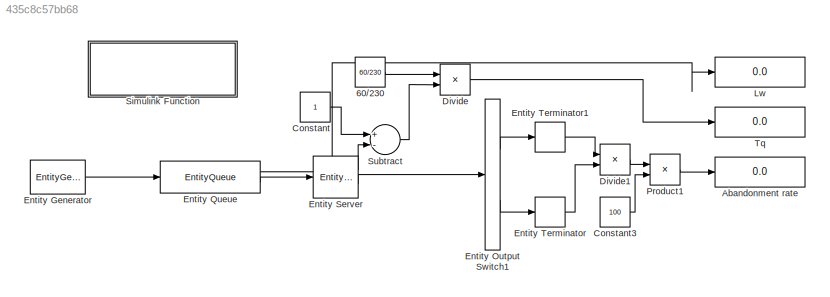
MODEL slx_435c8c57bb68
KIND model
CONFIG AbsTol = auto
CONFIG EnableMultiTasking = off
CONFIG FixedStep = auto
CONFIG MaxStep = auto
CONFIG MinStep = auto
CONFIG RelTol = 1e-3
CONFIG SampleTimeConstraint = Unconstrained
CONFIG Solver = VariableStepAuto
CONFIG SolverName = VariableStepAuto
CONFIG StartTime = 0.0
CONFIG StopTime = 1e5
BLOCK [Constant] 60//230
  Value = 60/230
BLOCK [Display] Abandonment rate
  Decimation = 1
  Ports = [1]
BLOCK [Constant] Constant
BLOCK [Constant] Constant3
  Value = 100
BLOCK [Product] Divide
  InputSameDT = off
  Inputs = */
  OutDataTypeStr = Inherit: Inherit via internal rule
  Ports = [2, 1]
  RndMeth = Floor
  SaturateOnIntegerOverflow = off
BLOCK [Product] Divide1
  InputSameDT = off
  Inputs = */
  OutDataTypeStr = Inherit: Inherit via internal rule
  Ports = [2, 1]
  RndMeth = Floor
  SaturateOnIntegerOverflow = off
BLOCK [EntityGenerator] Entity Generator
  AttributeInitialValue = 1|1|0|2
  AttributeName = ClassA|Impatient|StartTime|Exit
  EntityType = Structured
  EntityTypeName = Entity
  GenerateAction = persistent rngInit;\nif isempty(rngInit)\n    seed = 15318;\n    rng(seed);\n    rngInit = true;\nend\n\n% Pattern: Arbitrary discrete distribution\n% V: Value vector\n% P: Probability vector\nV = [1 2];\nP = [0.2 0.8];\nentity.ClassA = randsample(V, 1, true, P);\n\n% Pattern: Arbitrary discrete distribution\n% V: Value vector\n% P: Probability vector\nV = [1 2];\nP = [0.1 0.9];\nentity.Impatient = randsample(V, 1, ...<+47ch>
  IntergenerationTimeAction = dt = rand(1,1);\npersistent rngInit;\nif isempty(rngInit)\n    seed = 12345;\n    rng(seed);\n    rngInit = true;\nend\n\n% Pattern: Exponential distribution\nmu = 60/220;\ndt = -mu * log(1 - rand());
  OutputPortMap = o3
  OutputPortMessageModes = m
  Ports = [0, 1]
  TimeSource = MATLAB action
BLOCK [EntityOutputSwitch] Entity Output Switch1
  InputPortMap = u1
  InputPortMessageModes = m
  OutputPortMap = o0,o1
  OutputPortMessageModes = m,m
  Ports = [1, 2]
  SwitchAttributeName = Exit
  SwitchingCriterion = From attribute
BLOCK [EntityQueue] Entity Queue
  AverageQueueLength = on
  Capacity = inf
  InputPortMap = u0
  InputPortMessageModes = m
  OutputPortMap = o3,o5
  OutputPortMessageModes = n,m
  Ports = [1, 2]
  PrioritySource = ClassA
  QueueType = Priority
BLOCK [EntityServer] Entity Server
  Capacity = 1
  EntryAction = TimeTaken = (getCurrentTime()-entity.StartTime);\nif entity.Impatient ==1 && TimeTaken>3\n    entity.Exit=1;\nend
  InputPortMap = u2
  InputPortMessageModes = m
  OutputPortMap = o5,o9
  OutputPortMessageModes = n,m
  Ports = [1, 2]
  ServiceTimeAction = dt = rand(1,1);\npersistent rngInit;\nif isempty(rngInit)\n    seed = 845889;\n    rng(seed);\n    rngInit = true;\nend\n\n% Pattern: Exponential distribution\nmu = 60/230;\ndt = -mu * log(1 - rand());
  ServiceTimeAttributeName = ClassA
  ServiceTimeSource = MATLAB action
  ServiceTimeValue = 60/220
  Utilization = on
BLOCK [EntityTerminator] Entity Terminator
  InputPortMap = u0
  InputPortMessageModes = m
  NumberEntitiesArrived = on
  OutputPortMap = o0
  Ports = [1, 1]
BLOCK [EntityTerminator] Entity Terminator1
  InputPortMap = u0
  InputPortMessageModes = m
  NumberEntitiesArrived = on
  OutputPortMap = o0
  Ports = [1, 1]
BLOCK [Display] Lw
  Decimation = 5
  Format = bank
  Ports = [1]
BLOCK [Product] Product1
  InputSameDT = off
  OutDataTypeStr = Inherit: Inherit via internal rule
  Ports = [2, 1]
  RndMeth = Floor
  SaturateOnIntegerOverflow = off
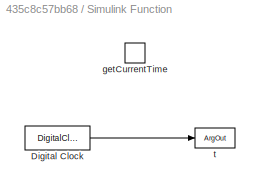
BLOCK [SubSystem] Simulink Function
  Ports = [0, 0, 0, 1]
  RequestExecContextInheritance = off
  TreatAsAtomicUnit = on
BLOCK [DigitalClock] Simulink Function/Digital Clock
  SampleTime = -1
BLOCK [TriggerPort] Simulink Function/getCurrentTime
  FunctionName = getCurrentTime
  IsSimulinkFunction = on
  Ports = []
  StatesWhenEnabling = held
  TriggerType = function-call
  VariantControl = (inherit)
BLOCK [ArgOut] Simulink Function/t
  ArgumentName = t
  DisableCoverage = on
BLOCK [Sum] Subtract
  InputSameDT = off
  Inputs = +-
  OutDataTypeStr = Inherit: Inherit via internal rule
  Ports = [2, 1]
  SaturateOnIntegerOverflow = off
BLOCK [Display] Tq
  Decimation = 1
  Ports = [1]
LINE 60//230:1 -> Divide:1
LINE Constant3:1 -> Product1:2
LINE Constant:1 -> Subtract:1
LINE Divide1:1 -> Product1:1
LINE Divide:1 -> Tq:1
LINE Entity Generator:1 -> Entity Queue:1
LINE Entity Output Switch1:1 -> Entity Terminator1:1
LINE Entity Output Switch1:2 -> Entity Terminator:1
LINE Entity Queue:1 -> Lw:1
LINE Entity Queue:2 -> Entity Server:1
LINE Entity Server:1 -> Subtract:2
LINE Entity Server:2 -> Entity Output Switch1:1
LINE Entity Terminator1:1 -> Divide1:1
LINE Entity Terminator:1 -> Divide1:2
LINE Product1:1 -> Abandonment rate:1
LINE Simulink Function/Digital Clock:1 -> Simulink Function/t:1
LINE Subtract:1 -> Divide:2
